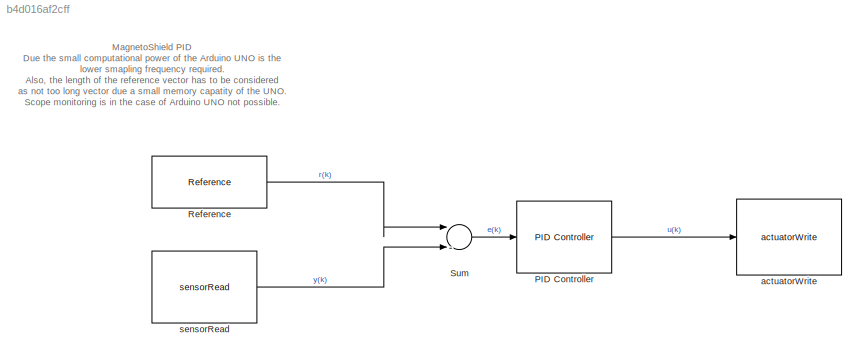
MODEL slx_b4d016af2cff
KIND model
CONFIG AbsTol = auto
CONFIG EnableMultiTasking = on
CONFIG FixedStep = auto
CONFIG MaxStep = auto
CONFIG MinStep = auto
CONFIG RelTol = 1e-3
CONFIG SampleTimeConstraint = Unconstrained
CONFIG Solver = FixedStepAuto
CONFIG SolverName = FixedStepAuto
CONFIG StartTime = 0.0
CONFIG StopTime = 120.0
BLOCK [Reference] PID Controller  REF=simulink/Continuous/PID Controller
  Ports = [1, 1]
  SourceBlock = simulink/Continuous/PID Controller
  SourceProductBaseCode = SL
  SourceType = PID 1dof
BLOCK [Reference] Reference  REF=CommonBlocks/Reference
  Ports = [0, 1]
  SourceBlock = CommonBlocks/Reference
  SourceProductName = AutomationShield
BLOCK [Sum] Sum
  InputSameDT = off
  Inputs = |-+
  OutDataTypeStr = Inherit: Inherit via internal rule
  Ports = [2, 1]
  SaturateOnIntegerOverflow = off
BLOCK [Reference] actuatorWrite  REF=MagnetoLibrary/actuatorWrite
  Ports = [1]
  SourceBlock = MagnetoLibrary/actuatorWrite
  SourceProductName = AutomationShield
BLOCK [Reference] sensorRead  REF=MagnetoLibrary/sensorRead
  Ports = [0, 1]
  SourceBlock = MagnetoLibrary/sensorRead
  SourceProductName = AutomationShield
ANNOTATION (root): MagnetoShield PID Due the small computational power of the Arduino UNO is the lower smapling frequency required. Also, the length of the reference vector has to be considered as not too long vector due a small memory capatity of the UNO. Scope monitoring is in the case of Arduino UNO not possible.
LINE PID Controller:1 -> actuatorWrite:1
LINE Reference:1 -> Sum:1
LINE Sum:1 -> PID Controller:1
LINE sensorRead:1 -> Sum:2
